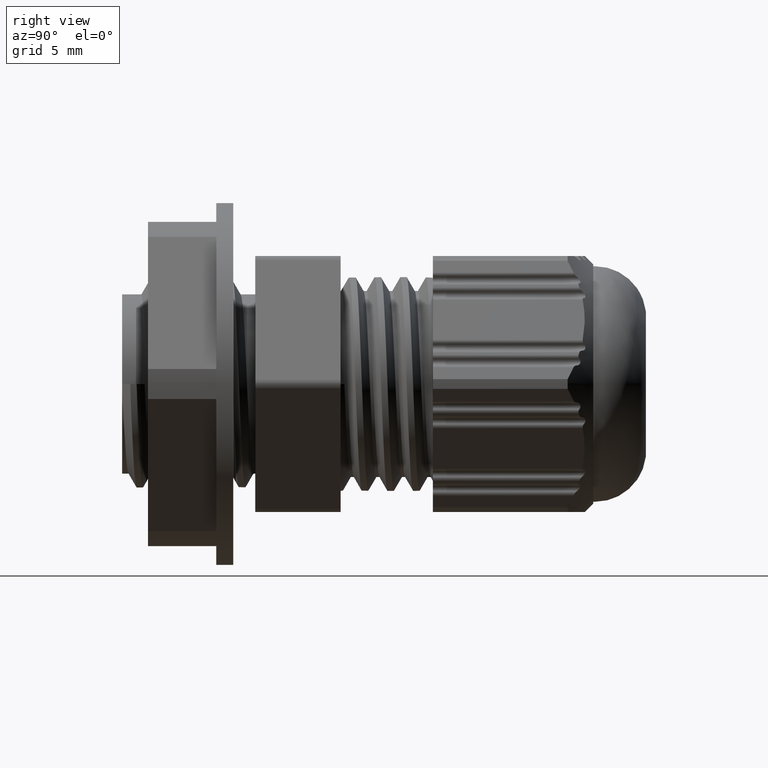
[diagram: clean part render]
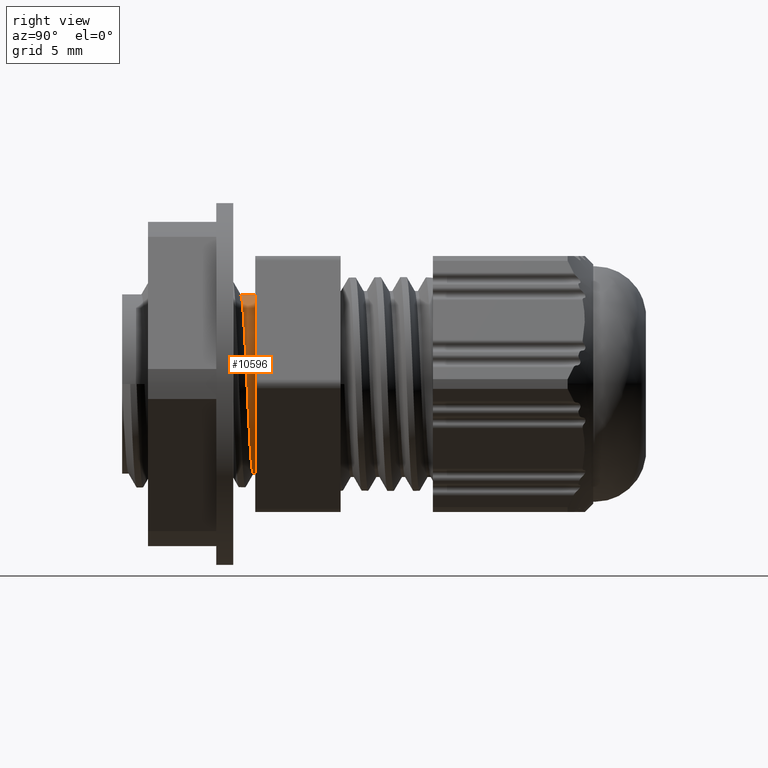
[diagram: same view with one face highlighted and labeled with its STEP entity id]
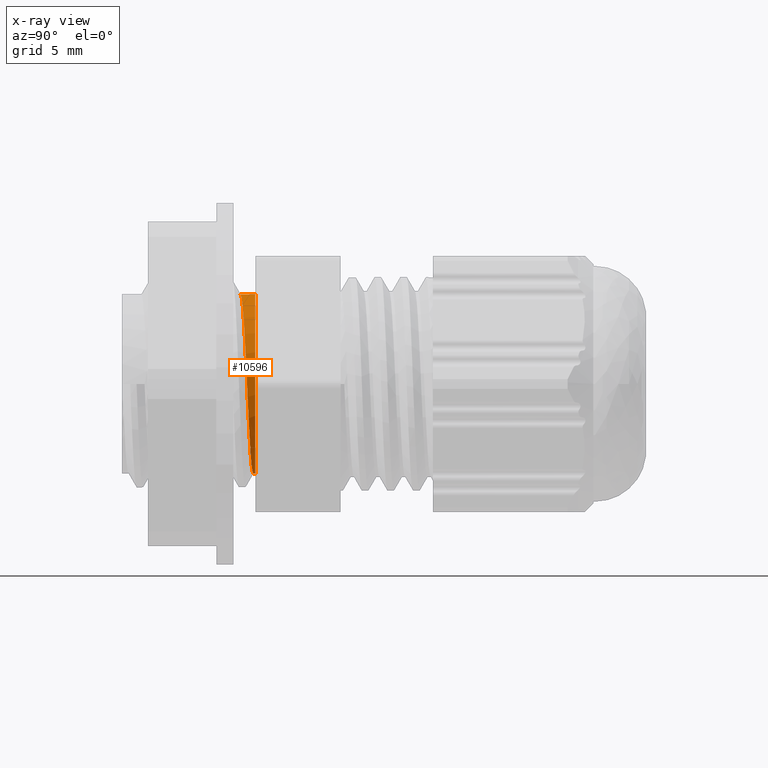
[diagram: x-ray of the same camera — body ghosted, the highlighted face saturated]
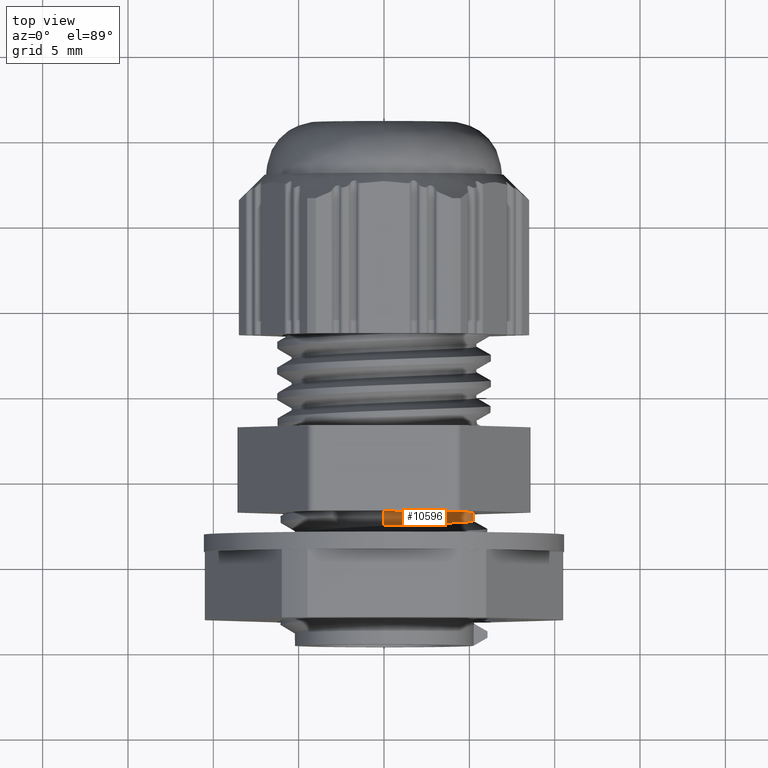
[diagram: same view with one face highlighted and labeled with its STEP entity id]
A machine part, right view. The second image highlights one B-rep face of the part: STEP entity #10596.
The next image is the same camera in x-ray: the body ghosted, the highlighted face saturated — about 0% of this face is hidden behind the body in this view.
A second angle (top view) of the same face is appended — the face is thin or edge-on in the first view.
In plain terms, the highlighted cylindrical surface (partial cylindrical patch) has radius 5.25 mm, axis along (-0, -1, -0).
Its self-contained STEP definition (entity closure, byte-faithful):
#2356 = CARTESIAN_POINT ( 'NONE',  ( 0.0000000000000000000, -16.46492342334570600, 0.0000000000000000000 ) ) ;
#2364 = DIRECTION ( 'NONE',  ( -0.0000000000000000000, -1.000000000000000000, -0.0000000000000000000 ) ) ;
#2371 = CYLINDRICAL_SURFACE ( 'NONE', #13796, 5.250000000000002700 ) ;
#2372 = DIRECTION ( 'NONE',  ( 0.0000000000000000000, 0.0000000000000000000, -1.000000000000000000 ) ) ;
#2376 = FACE_OUTER_BOUND ( 'NONE', #13068, .T. ) ;
#2671 = CARTESIAN_POINT ( 'NONE',  ( 2.174621202458747200, -7.072843740616489700, -5.249999999999995600 ) ) ;
#2672 = CARTESIAN_POINT ( 'NONE',  ( -9.644093543285412600E-016, -7.729093740616495900, 5.250000000000002700 ) ) ;
#2678 = CARTESIAN_POINT ( 'NONE',  ( 0.0000000000000000000, -6.866593736519717200, 0.0000000000000000000 ) ) ;
#2680 = CARTESIAN_POINT ( 'NONE',  ( 5.249999999999995600, -7.260343740616491500, -2.174621202458747200 ) ) ;
#2682 = DIRECTION ( 'NONE',  ( -0.0000000000000000000, -1.000000000000000000, -0.0000000000000000000 ) ) ;
#2684 = DIRECTION ( 'NONE',  ( 0.0000000000000000000, 0.0000000000000000000, -1.000000000000000000 ) ) ;
#2687 = CARTESIAN_POINT ( 'NONE',  ( 3.712310601229368100, -7.541593740616488800, 3.712310601229369800 ) ) ;
#2688 = CARTESIAN_POINT ( 'NONE',  ( 0.0000000000000000000, -16.46492342334570600, -5.250000000000002700 ) ) ;
#2690 = LINE ( 'NONE', #2688, #13878 ) ;
#2691 = DIRECTION ( 'NONE',  ( 0.0000000000000000000, -1.000000000000000000, 0.0000000000000000000 ) ) ;
#2697 = CARTESIAN_POINT ( 'NONE',  ( 5.249999999999994700, -7.447843740616489700, 2.174621202458750300 ) ) ;
#2698 = LINE ( 'NONE', #2756, #13873 ) ;
#2703 = CARTESIAN_POINT ( 'NONE',  ( 5.249999999999992900, -7.354093740616488800, 7.030083700335357700E-029 ) ) ;
#2704 = CARTESIAN_POINT ( 'NONE',  ( 2.174621202458748600, -7.635343740616490600, 5.249999999999994700 ) ) ;
#2706 = CARTESIAN_POINT ( 'NONE',  ( 3.712310601229369400, -7.166593740616489700, -3.712310601229369400 ) ) ;
#2707 = CARTESIAN_POINT ( 'NONE',  ( 3.214697847761804000E-016, -6.979093740616495000, -5.250000000000002700 ) ) ;
#2729 = DIRECTION ( 'NONE',  ( -0.0000000000000000000, -1.000000000000000000, -0.0000000000000000000 ) ) ;
#2756 = CARTESIAN_POINT ( 'NONE',  ( 6.429395695523608100E-016, -16.46492342334570600, 5.250000000000002700 ) ) ;
#10247 = CARTESIAN_POINT ( 'NONE',  ( -9.644093543285412600E-016, -7.729093740616495900, 5.250000000000002700 ) ) ;
#10256 = CARTESIAN_POINT ( 'NONE',  ( 6.429395695523608100E-016, -6.866593736519717200, 5.250000000000002700 ) ) ;
#10273 = CARTESIAN_POINT ( 'NONE',  ( 0.0000000000000000000, -6.866593736519717200, -5.250000000000002700 ) ) ;
#10293 = CARTESIAN_POINT ( 'NONE',  ( 3.214697847761804000E-016, -6.979093740616495000, -5.250000000000002700 ) ) ;
#10596 = ADVANCED_FACE ( 'NONE', ( #2376 ), #2371, .T. ) ;
#10674 = EDGE_CURVE ( 'NONE', #13097, #13088, #2690, .T. ) ;
#10676 = EDGE_CURVE ( 'NONE', #13097, #13101, #13866, .T. ) ;
#10678 = EDGE_CURVE ( 'NONE', #13144, #13088, #13714, .T. ) ;
#10689 = EDGE_CURVE ( 'NONE', #13101, #13144, #2698, .T. ) ;
#13068 = EDGE_LOOP ( 'NONE', ( #13679, #13663, #13680, #13695 ) ) ;
#13088 = VERTEX_POINT ( 'NONE', #10293 ) ;
#13097 = VERTEX_POINT ( 'NONE', #10273 ) ;
#13101 = VERTEX_POINT ( 'NONE', #10256 ) ;
#13144 = VERTEX_POINT ( 'NONE', #10247 ) ;
#13663 = ORIENTED_EDGE ( 'NONE', *, *, #10689, .T. ) ;
#13679 = ORIENTED_EDGE ( 'NONE', *, *, #10676, .T. ) ;
#13680 = ORIENTED_EDGE ( 'NONE', *, *, #10678, .T. ) ;
#13695 = ORIENTED_EDGE ( 'NONE', *, *, #10674, .F. ) ;
#13714 =( BOUNDED_CURVE ( )  B_SPLINE_CURVE ( 2, ( #2672, #2704, #2687, #2697, #2703, #2680, #2706, #2671, #2707 ),
 .UNSPECIFIED., .F., .T. ) 
 B_SPLINE_CURVE_WITH_KNOTS ( ( 3, 2, 2, 2, 3 ),
 ( 0.1232041180915334500, 0.1273110931199339900, 0.1314180681483345100, 0.1355250431767350300, 0.1396320182051355700 ),
 .UNSPECIFIED. ) 
 CURVE ( )  GEOMETRIC_REPRESENTATION_ITEM ( )  RATIONAL_B_SPLINE_CURVE ( ( 1.000000000000000000, 0.9238795325112867400, 1.000000000000000000, 0.9238795325112867400, 1.000000000000000000, 0.9238795325112867400, 1.000000000000000000, 0.9238795325112867400, 1.000000000000000000 ) ) 
 REPRESENTATION_ITEM ( '' )  );
#13796 = AXIS2_PLACEMENT_3D ( 'NONE', #2356, #2364, #2372 ) ;
#13866 = CIRCLE ( 'NONE', #13887, 5.250000000000002700 ) ;
#13873 = VECTOR ( 'NONE', #2729, 1000.000000000000000 ) ;
#13878 = VECTOR ( 'NONE', #2682, 1000.000000000000000 ) ;
#13887 = AXIS2_PLACEMENT_3D ( 'NONE', #2678, #2691, #2684 ) ;